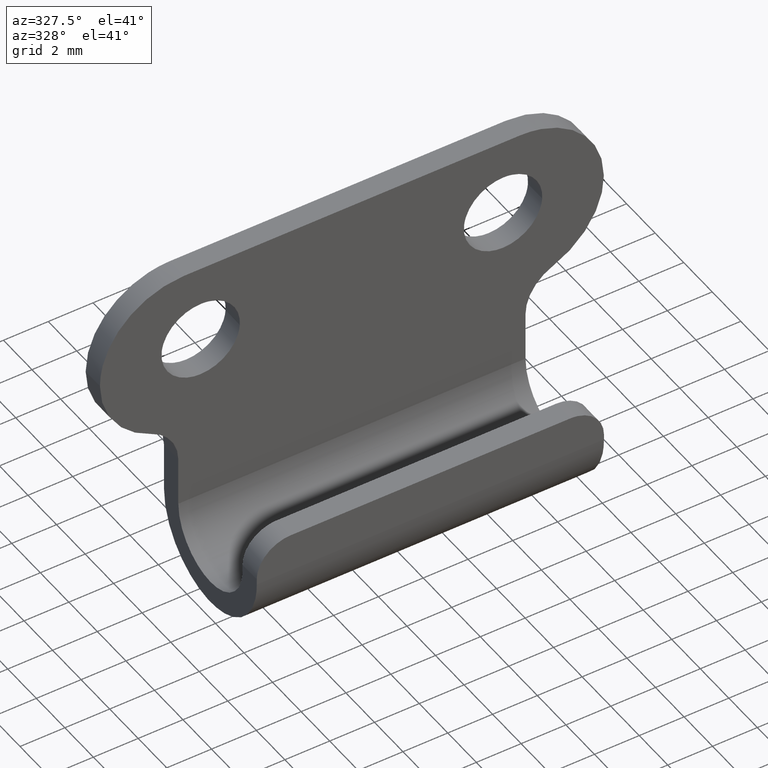
[diagram: clean part render]
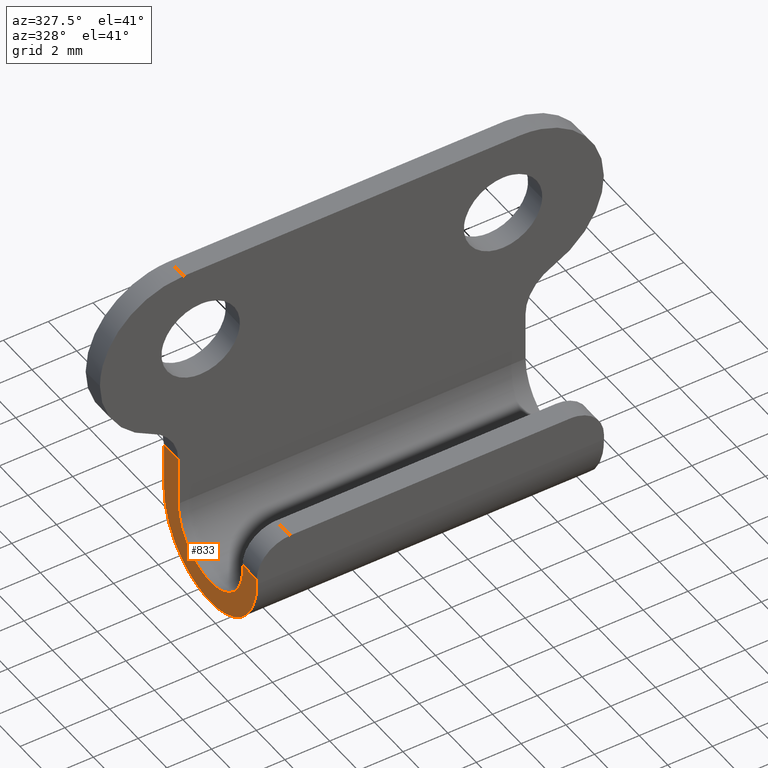
[diagram: same view with one face highlighted and labeled with its STEP entity id]
A machine part, auxiliary view. The second image highlights one B-rep face of the part: STEP entity #833.
In plain terms, the highlighted face is a freeform B-spline surface patch.
Its self-contained STEP definition (entity closure, byte-faithful):
#430=CARTESIAN_POINT('',(-7.750000000000000,-5.500000000000000,-11.0));
#431=VERTEX_POINT('',#430);
#447=CARTESIAN_POINT('',(-7.750000000000000,-6.500000000000000,-11.0));
#448=VERTEX_POINT('',#447);
#449=CARTESIAN_POINT('',(-7.750000000000000,-6.500000000000000,-11.0));
#450=CARTESIAN_POINT('',(-7.750000000000000,-5.500000000000000,-11.0));
#451=QUASI_UNIFORM_CURVE('',1,(#449,#450),.UNSPECIFIED.,.F.,.U.);
#452=EDGE_CURVE('',#448,#431,#451,.T.);
#674=CARTESIAN_POINT('',(-7.750000000000000,-1.0,-9.041000000043569));
#675=VERTEX_POINT('',#674);
#698=CARTESIAN_POINT('',(-7.750000000000000,0.0,-9.041000000043569));
#699=VERTEX_POINT('',#698);
#713=CARTESIAN_POINT('',(-7.750000000000000,0.0,-9.041000000043569));
#714=CARTESIAN_POINT('',(-7.750000000000000,-1.0,-9.041000000043569));
#715=QUASI_UNIFORM_CURVE('',1,(#713,#714),.UNSPECIFIED.,.F.,.U.);
#716=EDGE_CURVE('',#699,#675,#715,.T.);
#766=CARTESIAN_POINT('',(-7.750000000000000,-6.824674987401740,-14.772677019913811));
#767=CARTESIAN_POINT('',(-7.750000000000000,-6.824674987401740,-8.768323224166045));
#768=CARTESIAN_POINT('',(-7.750000000000000,0.324675161745325,-14.772677019913811));
#769=CARTESIAN_POINT('',(-7.750000000000000,0.324675161745325,-8.768323224166045));
#770=B_SPLINE_SURFACE_WITH_KNOTS('',1,1,((#766,#768),(#767,#769)),.UNSPECIFIED.,.F.,.F.,.U.,(2,2),(2,2),(0.0,6.004353795747768),(0.0,7.149350149147065),.UNSPECIFIED.);
#771=CARTESIAN_POINT('',(-7.750000000000000,-6.500000000000000,-11.250000000000000));
#772=VERTEX_POINT('',#771);
#773=CARTESIAN_POINT('',(-7.750000000000000,-6.500000000000000,-11.0));
#774=CARTESIAN_POINT('',(-7.750000000000000,-6.500000000000000,-11.250000000000000));
#775=QUASI_UNIFORM_CURVE('',1,(#773,#774),.UNSPECIFIED.,.F.,.U.);
#776=EDGE_CURVE('',#448,#772,#775,.T.);
#777=ORIENTED_EDGE('',*,*,#776,.F.);
#778=ORIENTED_EDGE('',*,*,#452,.T.);
#779=CARTESIAN_POINT('',(-7.750000000000000,-5.500000000000000,-11.250000000000000));
#780=VERTEX_POINT('',#779);
#781=CARTESIAN_POINT('',(-7.750000000000000,-5.500000000000000,-11.250000000000000));
#782=CARTESIAN_POINT('',(-7.750000000000000,-5.500000000000000,-11.0));
#783=QUASI_UNIFORM_CURVE('',1,(#781,#782),.UNSPECIFIED.,.F.,.U.);
#784=EDGE_CURVE('',#780,#431,#783,.T.);
#785=ORIENTED_EDGE('',*,*,#784,.F.);
#786=CARTESIAN_POINT('',(-7.750000000000000,-1.000000000000014,-11.250000000000000));
#787=VERTEX_POINT('',#786);
#788=CARTESIAN_POINT('',(-7.750000000000000,-1.0,-11.250000000000000));
#789=CARTESIAN_POINT('',(-7.750000000000001,-1.0,-13.500000000000000));
#790=CARTESIAN_POINT('',(-7.750000000000000,-3.250000000000000,-13.500000000000000));
#791=CARTESIAN_POINT('',(-7.750000000000001,-5.500000000000000,-13.500000000000000));
#792=CARTESIAN_POINT('',(-7.750000000000000,-5.500000000000000,-11.250000000000000));
#800=(BOUNDED_CURVE()B_SPLINE_CURVE(2,(#788,#789,#790,#791,#792),.UNSPECIFIED.,.F.,.U.)B_SPLINE_CURVE_WITH_KNOTS((3,2,3),(0.0,0.500000000000000,1.0),.UNSPECIFIED.)CURVE()GEOMETRIC_REPRESENTATION_ITEM()RATIONAL_B_SPLINE_CURVE((1.0,0.707106781186547,1.0,0.707106781186547,1.0))REPRESENTATION_ITEM(''));
#801=EDGE_CURVE('',#787,#780,#800,.T.);
#802=ORIENTED_EDGE('',*,*,#801,.F.);
#803=CARTESIAN_POINT('',(-7.750000000000000,-1.0,-9.041000000043569));
#804=CARTESIAN_POINT('',(-7.750000000000000,-1.000000000000014,-11.250000000000000));
#805=QUASI_UNIFORM_CURVE('',1,(#803,#804),.UNSPECIFIED.,.F.,.U.);
#806=EDGE_CURVE('',#675,#787,#805,.T.);
#807=ORIENTED_EDGE('',*,*,#806,.F.);
#808=ORIENTED_EDGE('',*,*,#716,.F.);
#809=CARTESIAN_POINT('',(-7.750000000000000,0.0,-11.250000000000000));
#810=VERTEX_POINT('',#809);
#811=CARTESIAN_POINT('',(-7.750000000000000,0.0,-9.041000000043569));
#812=CARTESIAN_POINT('',(-7.750000000000000,0.0,-11.250000000000000));
#813=QUASI_UNIFORM_CURVE('',1,(#811,#812),.UNSPECIFIED.,.F.,.U.);
#814=EDGE_CURVE('',#699,#810,#813,.T.);
#815=ORIENTED_EDGE('',*,*,#814,.T.);
#816=CARTESIAN_POINT('',(-7.750000000000000,0.0,-11.250000000000000));
#817=CARTESIAN_POINT('',(-7.750000000000001,0.0,-14.500000000000004));
#818=CARTESIAN_POINT('',(-7.750000000000000,-3.250000000000000,-14.500000000000000));
#819=CARTESIAN_POINT('',(-7.750000000000001,-6.500000000000000,-14.500000000000004));
#820=CARTESIAN_POINT('',(-7.750000000000000,-6.500000000000000,-11.250000000000000));
#828=(BOUNDED_CURVE()B_SPLINE_CURVE(2,(#816,#817,#818,#819,#820),.UNSPECIFIED.,.F.,.U.)B_SPLINE_CURVE_WITH_KNOTS((3,2,3),(0.0,0.500000000000000,1.0),.UNSPECIFIED.)CURVE()GEOMETRIC_REPRESENTATION_ITEM()RATIONAL_B_SPLINE_CURVE((1.0,0.707106781186547,1.0,0.707106781186547,1.0))REPRESENTATION_ITEM(''));
#829=EDGE_CURVE('',#810,#772,#828,.T.);
#830=ORIENTED_EDGE('',*,*,#829,.T.);
#831=EDGE_LOOP('',(#777,#778,#785,#802,#807,#808,#815,#830));
#832=FACE_OUTER_BOUND('',#831,.T.);
#833=ADVANCED_FACE('',(#832),#770,.T.);